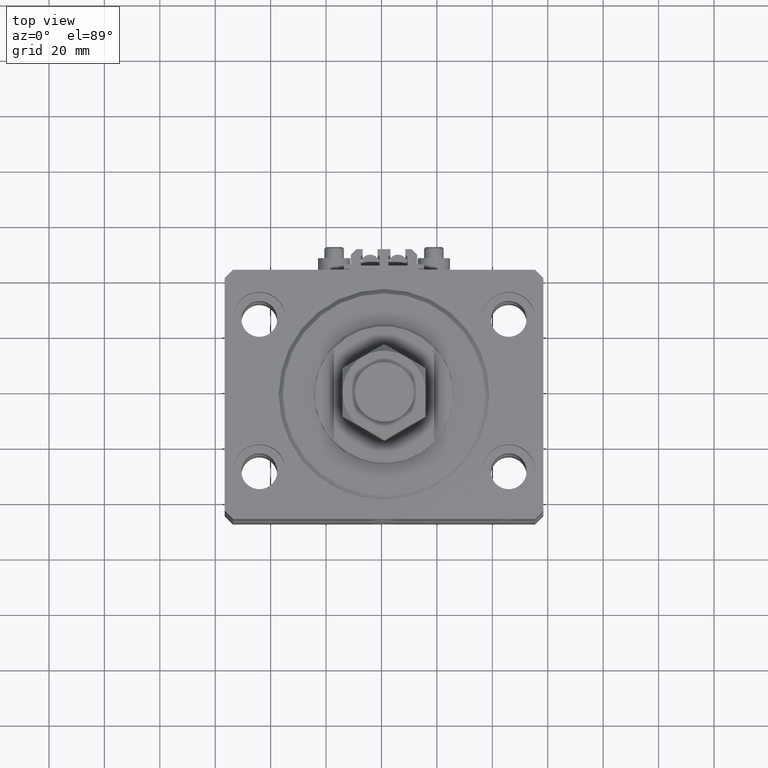
[diagram: clean part render]
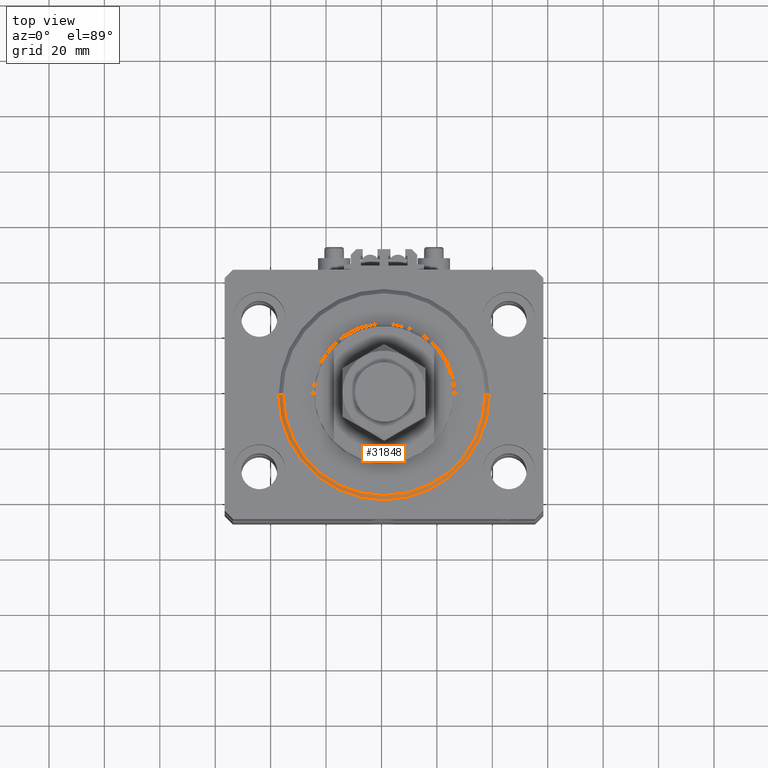
[diagram: same view with one face highlighted and labeled with its STEP entity id]
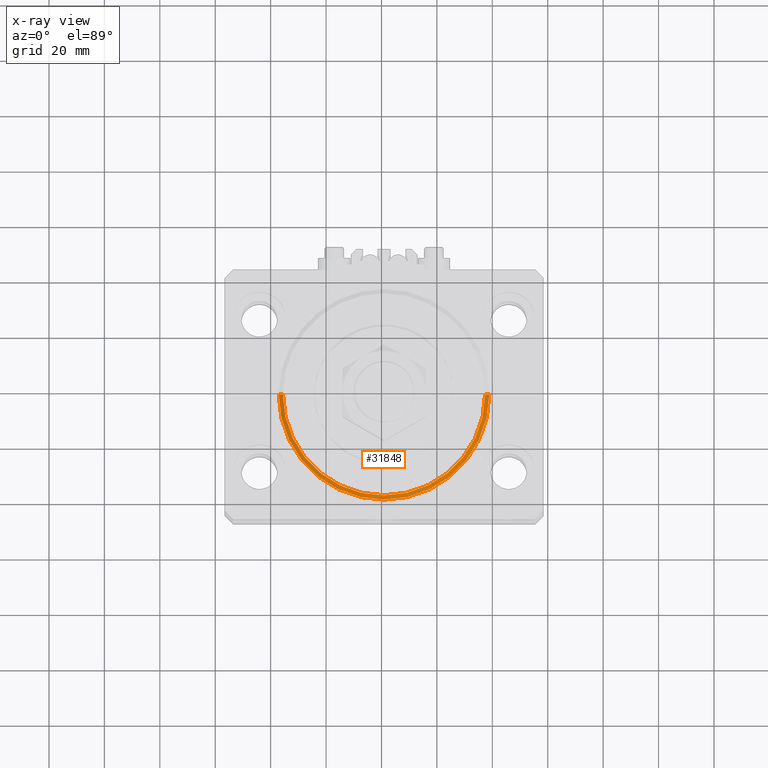
[diagram: x-ray of the same camera — body ghosted, the highlighted face saturated]
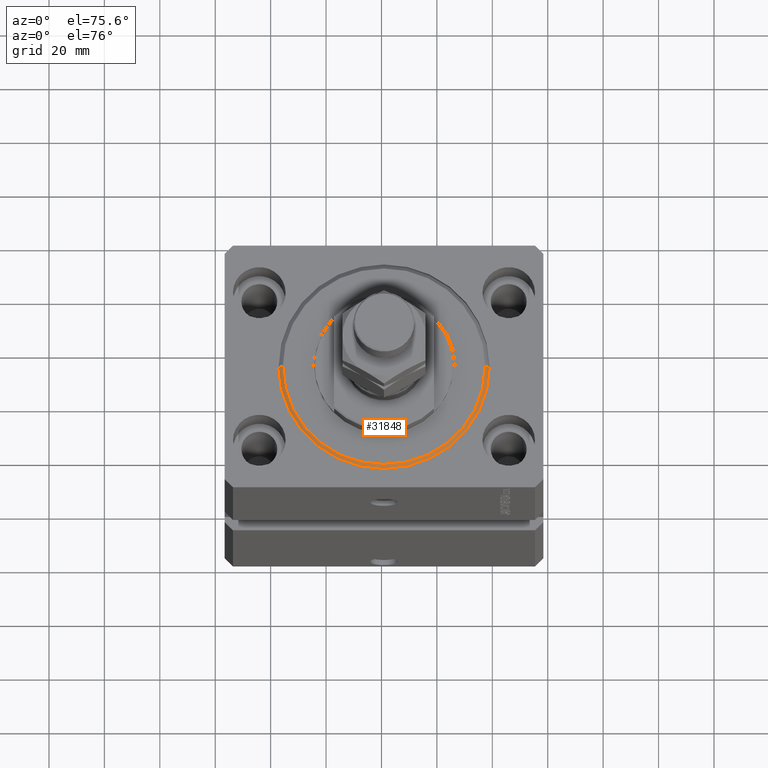
[diagram: same view with one face highlighted and labeled with its STEP entity id]
A machine part, top view. The second image highlights one B-rep face of the part: STEP entity #31848.
The next image is the same camera in x-ray: the body ghosted, the highlighted face saturated — about 0% of this face is hidden behind the body in this view.
A second angle (auxiliary view) of the same face is appended — the face is thin or edge-on in the first view.
In plain terms, the highlighted conical surface has half-angle 45 deg.
Its self-contained STEP definition (entity closure, byte-faithful):
#906 = CARTESIAN_POINT ( 'NONE',  ( 0.000000000000000000, 0.000000000000000000, 1.499999999999994449 ) ) ;
#4139 = CARTESIAN_POINT ( 'NONE',  ( 38.00000000000000000, 4.653657836759941941E-15, 1.499999999999994449 ) ) ;
#5081 = DIRECTION ( 'NONE',  ( 1.000000000000000000, 0.000000000000000000, 0.000000000000000000 ) ) ;
#6119 = DIRECTION ( 'NONE',  ( -0.000000000000000000, -0.000000000000000000, 1.000000000000000000 ) ) ;
#7530 = EDGE_CURVE ( 'NONE', #29438, #32711, #33279, .T. ) ;
#13190 = DIRECTION ( 'NONE',  ( -0.7071067811865491270, 8.659560562354953812E-17, 0.7071067811865459074 ) ) ;
#13712 = DIRECTION ( 'NONE',  ( 1.000000000000000000, 0.000000000000000000, 0.000000000000000000 ) ) ;
#14934 = CARTESIAN_POINT ( 'NONE',  ( 38.00000000000000000, 0.000000000000000000, 1.499999999999994449 ) ) ;
#15545 = VERTEX_POINT ( 'NONE', #27646 ) ;
#15551 = ORIENTED_EDGE ( 'NONE', *, *, #39000, .F. ) ;
#15648 = VECTOR ( 'NONE', #13190, 1000.000000000000114 ) ;
#18217 = DIRECTION ( 'NONE',  ( 1.000000000000000000, 0.000000000000000000, 0.000000000000000000 ) ) ;
#18940 = CIRCLE ( 'NONE', #35650, 36.50000000000000000 ) ;
#19807 = AXIS2_PLACEMENT_3D ( 'NONE', #29883, #6119, #13712 ) ;
#20208 = VECTOR ( 'NONE', #50455, 1000.000000000000114 ) ;
#21281 = FACE_OUTER_BOUND ( 'NONE', #25553, .T. ) ;
#22360 = CIRCLE ( 'NONE', #51594, 38.00000000000000000 ) ;
#25553 = EDGE_LOOP ( 'NONE', ( #50241, #15551, #51626, #39973 ) ) ;
#27331 = CARTESIAN_POINT ( 'NONE',  ( -36.50000000000000000, 4.561809326823889791E-15, 0.000000000000000000 ) ) ;
#27646 = CARTESIAN_POINT ( 'NONE',  ( -38.00000000000000000, 0.000000000000000000, 1.499999999999994449 ) ) ;
#29106 = CARTESIAN_POINT ( 'NONE',  ( -38.00000000000000000, 4.653657836759941941E-15, 1.499999999999994449 ) ) ;
#29438 = VERTEX_POINT ( 'NONE', #48199 ) ;
#29883 = CARTESIAN_POINT ( 'NONE',  ( 0.000000000000000000, 0.000000000000000000, 1.499999999999994449 ) ) ;
#31302 = LINE ( 'NONE', #29106, #15648 ) ;
#31756 = EDGE_CURVE ( 'NONE', #37130, #15545, #31302, .T. ) ;
#31848 = ADVANCED_FACE ( 'NONE', ( #21281 ), #42315, .T. ) ;
#32711 = VERTEX_POINT ( 'NONE', #4139 ) ;
#33175 = EDGE_CURVE ( 'NONE', #15545, #32711, #22360, .T. ) ;
#33279 = LINE ( 'NONE', #14934, #20208 ) ;
#35650 = AXIS2_PLACEMENT_3D ( 'NONE', #46944, #50082, #18217 ) ;
#37130 = VERTEX_POINT ( 'NONE', #27331 ) ;
#39000 = EDGE_CURVE ( 'NONE', #29438, #37130, #18940, .T. ) ;
#39973 = ORIENTED_EDGE ( 'NONE', *, *, #33175, .F. ) ;
#40878 = DIRECTION ( 'NONE',  ( -0.000000000000000000, -0.000000000000000000, 1.000000000000000000 ) ) ;
#42315 = CONICAL_SURFACE ( 'NONE', #19807, 38.00000000000000000, 0.7853981633974506105 ) ;
#46944 = CARTESIAN_POINT ( 'NONE',  ( 0.000000000000000000, 0.000000000000000000, 0.000000000000000000 ) ) ;
#48199 = CARTESIAN_POINT ( 'NONE',  ( 36.50000000000000000, 0.000000000000000000, 0.000000000000000000 ) ) ;
#50082 = DIRECTION ( 'NONE',  ( -0.000000000000000000, -0.000000000000000000, -1.000000000000000000 ) ) ;
#50241 = ORIENTED_EDGE ( 'NONE', *, *, #31756, .F. ) ;
#50455 = DIRECTION ( 'NONE',  ( 0.7071067811865491270, 0.000000000000000000, 0.7071067811865459074 ) ) ;
#51594 = AXIS2_PLACEMENT_3D ( 'NONE', #906, #40878, #5081 ) ;
#51626 = ORIENTED_EDGE ( 'NONE', *, *, #7530, .T. ) ;